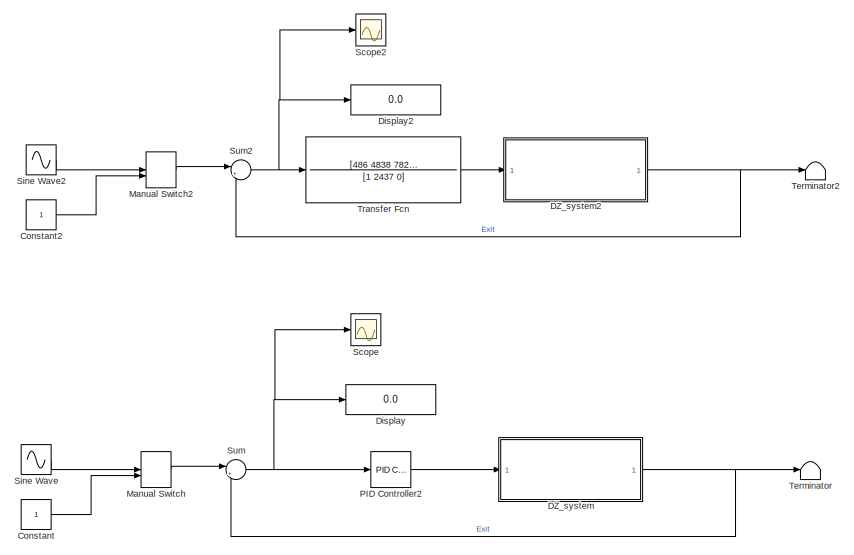
[diagram: root canvas - part 1/2, full width, top band]
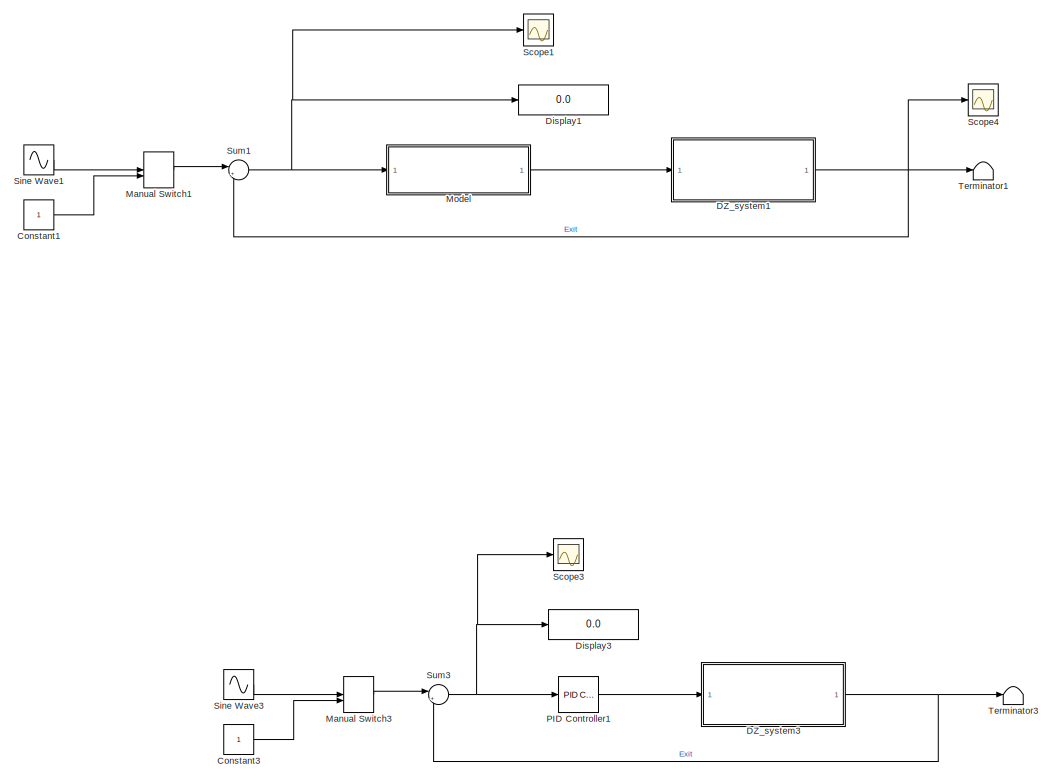
[diagram: root canvas - part 2/2, full width, bottom band]
MODEL slx_d59ea3b430da
KIND model
CONFIG AbsTol = auto
CONFIG EnableMultiTasking = off
CONFIG FixedStep = 1e-4
CONFIG MaxStep = auto
CONFIG MinStep = auto
CONFIG RelTol = 1e-3
CONFIG SampleTimeConstraint = Unconstrained
CONFIG SolverName = ode23t
CONFIG StartTime = 0.0
CONFIG StopTime = 20
BLOCK [Constant] Constant
  Commented = on
BLOCK [Constant] Constant1
BLOCK [Constant] Constant2
  Commented = on
BLOCK [Constant] Constant3
  Commented = on
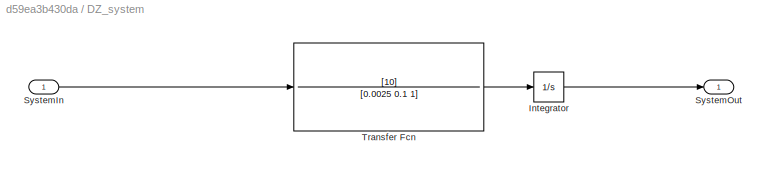
BLOCK [SubSystem] DZ_system
  Commented = on
BLOCK [Integrator] DZ_system/Integrator
BLOCK [Inport] DZ_system/SystemIn
BLOCK [Outport] DZ_system/SystemOut
BLOCK [TransferFcn] DZ_system/Transfer Fcn
  Denominator = [0.0025 0.1 1]
  Numerator = [10]
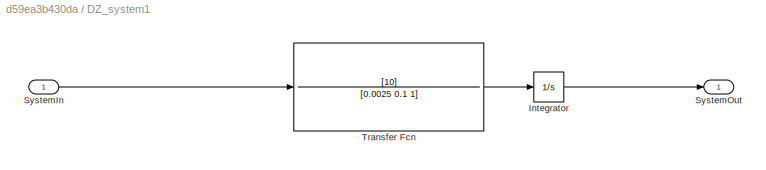
BLOCK [SubSystem] DZ_system1
BLOCK [Integrator] DZ_system1/Integrator
BLOCK [Inport] DZ_system1/SystemIn
BLOCK [Outport] DZ_system1/SystemOut
BLOCK [TransferFcn] DZ_system1/Transfer Fcn
  Denominator = [0.0025 0.1 1]
  Numerator = [10]
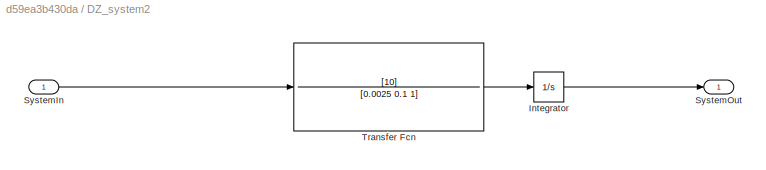
BLOCK [SubSystem] DZ_system2
  Commented = on
BLOCK [Integrator] DZ_system2/Integrator
BLOCK [Inport] DZ_system2/SystemIn
BLOCK [Outport] DZ_system2/SystemOut
BLOCK [TransferFcn] DZ_system2/Transfer Fcn
  Denominator = [0.0025 0.1 1]
  Numerator = [10]
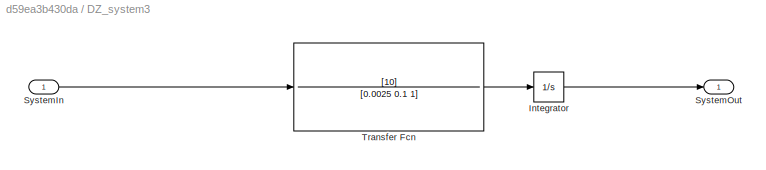
BLOCK [SubSystem] DZ_system3
  Commented = on
BLOCK [Integrator] DZ_system3/Integrator
BLOCK [Inport] DZ_system3/SystemIn
BLOCK [Outport] DZ_system3/SystemOut
BLOCK [TransferFcn] DZ_system3/Transfer Fcn
  Denominator = [0.0025 0.1 1]
  Numerator = [10]
BLOCK [Display] Display
  Commented = on
  Decimation = 1
BLOCK [Display] Display1
  Decimation = 1
BLOCK [Display] Display2
  Commented = on
  Decimation = 1
BLOCK [Display] Display3
  Commented = on
  Decimation = 1
BLOCK [ManualSwitch] Manual Switch
  Commented = on
BLOCK [ManualSwitch] Manual Switch1
  CurrentSetting = 0
BLOCK [ManualSwitch] Manual Switch2
  Commented = on
BLOCK [ManualSwitch] Manual Switch3
  Commented = on
BLOCK [ModelReference] Model
  ModelNameDialog = Reg_disc.slx
  ModelReferenceVersion = 1.19
BLOCK [Reference] PID Controller1  REF=slpidlib/PID Controller
  Commented = on
  LibrarySourceBlock = simulink/Continuous/PID Controller
  SourceBlock = slpidlib/PID Controller
  SourceType = PID 1dof
BLOCK [Reference] PID Controller2  REF=slpidlib/PID Controller
  Commented = on
  LibrarySourceBlock = simulink/Continuous/PID Controller
  SourceBlock = slpidlib/PID Controller
  SourceType = PID 1dof
BLOCK [Scope] Scope
  Commented = on
  Floating = off
  NumInputPorts = 1
  ScopeSpecificationString = Simulink.scopes.TimeScopeBlockCfg('CurrentConfiguration', extmgr.ConfigurationSet(extmgr.Configuration('Core','General UI',true),extmgr.Configuration('Core','Source UI',true),extmgr.Configuration('Sources','WiredSimulink',true),extmgr.Configuration('Visuals','Time Domain',true,'SerializedDisplays',{struct('MinYLimReal','-1.69501','MaxYLimReal','1.69833','YLabelReal','','MinYLimMag','0.00000','MaxY...<+1404ch>
BLOCK [Scope] Scope1
  Floating = off
  NumInputPorts = 1
  ScopeSpecificationString = Simulink.scopes.TimeScopeBlockCfg('CurrentConfiguration', extmgr.ConfigurationSet(extmgr.Configuration('Core','General UI',true),extmgr.Configuration('Core','Source UI',true),extmgr.Configuration('Sources','WiredSimulink',true,'DataLoggingVariableName','ScopeData1'),extmgr.Configuration('Visuals','Time Domain',true,'SerializedDisplays',{struct('MinYLimReal','-1.75302','MaxYLimReal','1.75185','YLab...<+1442ch>
BLOCK [Scope] Scope2
  Commented = on
  Floating = off
  NumInputPorts = 1
  ScopeSpecificationString = Simulink.scopes.TimeScopeBlockCfg('CurrentConfiguration', extmgr.ConfigurationSet(extmgr.Configuration('Core','General UI',true),extmgr.Configuration('Core','Source UI',true),extmgr.Configuration('Sources','WiredSimulink',true,'DataLoggingVariableName','ScopeData1'),extmgr.Configuration('Visuals','Time Domain',true,'SerializedDisplays',{struct('MinYLimReal','-0.57754','MaxYLimReal','1.39842','YLab...<+1388ch>
BLOCK [Scope] Scope3
  Commented = on
  Floating = off
  NumInputPorts = 1
  ScopeSpecificationString = Simulink.scopes.TimeScopeBlockCfg('CurrentConfiguration', extmgr.ConfigurationSet(extmgr.Configuration('Core','General UI',true),extmgr.Configuration('Core','Source UI',true),extmgr.Configuration('Sources','WiredSimulink',true,'DataLoggingVariableName','ScopeData2'),extmgr.Configuration('Visuals','Time Domain',true,'SerializedDisplays',{struct('MinYLimReal','-10820894163185241333905380847043078246...<+2442ch>
BLOCK [Scope] Scope4
  Floating = off
  NumInputPorts = 1
  ScopeSpecificationString = Simulink.scopes.TimeScopeBlockCfg('CurrentConfiguration', extmgr.ConfigurationSet(extmgr.Configuration('Core','General UI',true),extmgr.Configuration('Core','Source UI',true),extmgr.Configuration('Sources','WiredSimulink',true,'DataLoggingVariableName','ScopeData1'),extmgr.Configuration('Visuals','Time Domain',true,'SerializedDisplays',{struct('MinYLimReal','-0.17209','MaxYLimReal','1.54877','YLab...<+1363ch>
BLOCK [Sin] Sine Wave
  Amplitude = 50
  Commented = on
  Frequency = 0.5
  SampleTime = 0
BLOCK [Sin] Sine Wave1
  Amplitude = 50
  Frequency = 0.5
  SampleTime = 0
BLOCK [Sin] Sine Wave2
  Amplitude = 50
  Commented = on
  Frequency = 0.5
  SampleTime = 0
BLOCK [Sin] Sine Wave3
  Amplitude = 50
  Commented = on
  Frequency = 0.5
  SampleTime = 0
BLOCK [Sum] Sum
  Commented = on
  Inputs = |+-
BLOCK [Sum] Sum1
  Inputs = |+-
BLOCK [Sum] Sum2
  Commented = on
  Inputs = |+-
BLOCK [Sum] Sum3
  Commented = on
  Inputs = |+-
BLOCK [Terminator] Terminator
  Commented = on
BLOCK [Terminator] Terminator1
BLOCK [Terminator] Terminator2
  Commented = on
BLOCK [Terminator] Terminator3
  Commented = on
BLOCK [TransferFcn] Transfer Fcn
  Commented = on
  Denominator = [1 2437 0]
  Numerator = [486 4838 7827]
LINE Constant1:1 -> Manual Switch1:2
LINE Constant2:1 -> Manual Switch2:2
LINE Constant3:1 -> Manual Switch3:2
LINE Constant:1 -> Manual Switch:2
LINE DZ_system/Integrator:1 -> DZ_system/SystemOut:1
LINE DZ_system/SystemIn:1 -> DZ_system/Transfer Fcn:1
LINE DZ_system/Transfer Fcn:1 -> DZ_system/Integrator:1
LINE DZ_system1/Integrator:1 -> DZ_system1/SystemOut:1
LINE DZ_system1/SystemIn:1 -> DZ_system1/Transfer Fcn:1
LINE DZ_system1/Transfer Fcn:1 -> DZ_system1/Integrator:1
NET DZ_system1:1 -> Scope4:1, Sum1:2, Terminator1:1
LINE DZ_system2/Integrator:1 -> DZ_system2/SystemOut:1
LINE DZ_system2/SystemIn:1 -> DZ_system2/Transfer Fcn:1
LINE DZ_system2/Transfer Fcn:1 -> DZ_system2/Integrator:1
NET DZ_system2:1 -> Sum2:2, Terminator2:1
LINE DZ_system3/Integrator:1 -> DZ_system3/SystemOut:1
LINE DZ_system3/SystemIn:1 -> DZ_system3/Transfer Fcn:1
LINE DZ_system3/Transfer Fcn:1 -> DZ_system3/Integrator:1
NET DZ_system3:1 -> Sum3:2, Terminator3:1
NET DZ_system:1 -> Sum:2, Terminator:1
LINE Manual Switch1:1 -> Sum1:1
LINE Manual Switch2:1 -> Sum2:1
LINE Manual Switch3:1 -> Sum3:1
LINE Manual Switch:1 -> Sum:1
LINE Model:1 -> DZ_system1:1
LINE PID Controller1:1 -> DZ_system3:1
LINE PID Controller2:1 -> DZ_system:1
LINE Sine Wave1:1 -> Manual Switch1:1
LINE Sine Wave2:1 -> Manual Switch2:1
LINE Sine Wave3:1 -> Manual Switch3:1
LINE Sine Wave:1 -> Manual Switch:1
NET Sum1:1 -> Display1:1, Model:1, Scope1:1
NET Sum2:1 -> Display2:1, Scope2:1, Transfer Fcn:1
NET Sum3:1 -> Display3:1, PID Controller1:1, Scope3:1
NET Sum:1 -> Display:1, PID Controller2:1, Scope:1
LINE Transfer Fcn:1 -> DZ_system2:1
note: NET lines group one-source signal fan-out (src -> all destinations, sorted); 1:1 wires keep LINE
